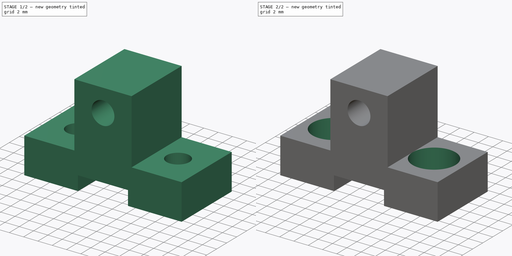
[diagram: build sequence overview — one tinted view per stage of 2, left to right]
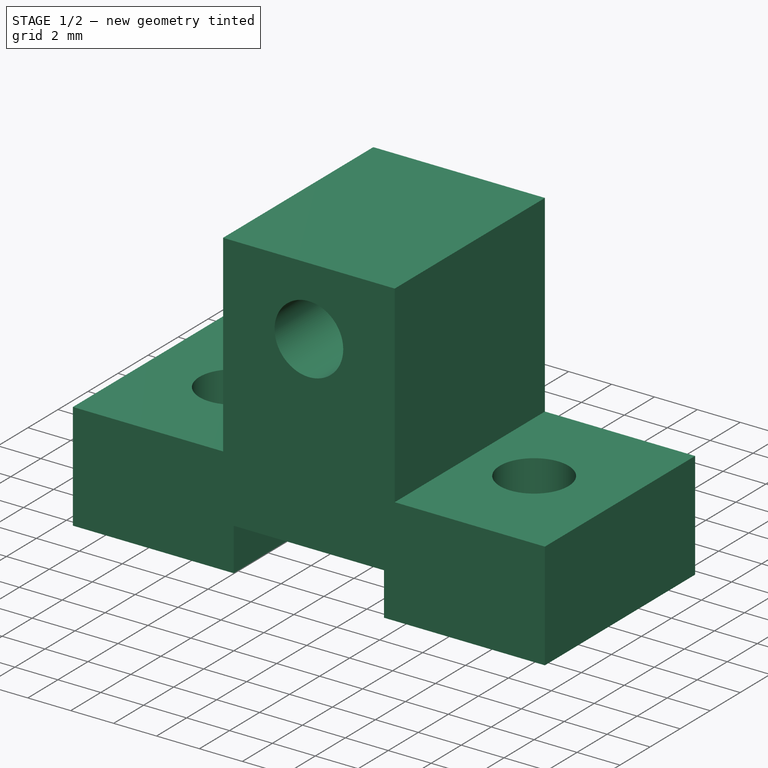
[diagram: stage 1 of 2 — iso view after this stage's code; geometry added in this stage tinted green]
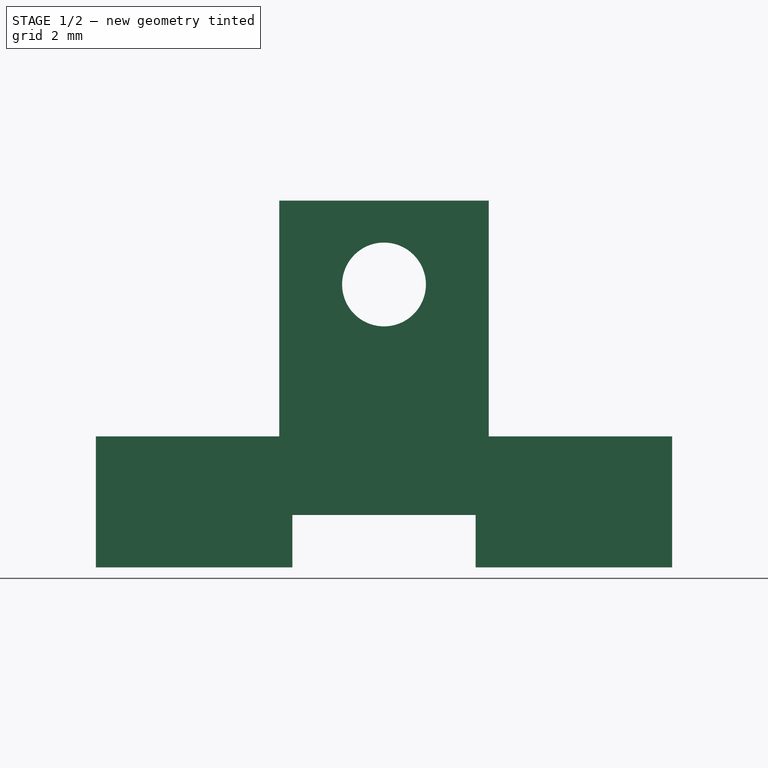
[diagram: stage 1 of 2 — front view after this stage's code; geometry added in this stage tinted green]
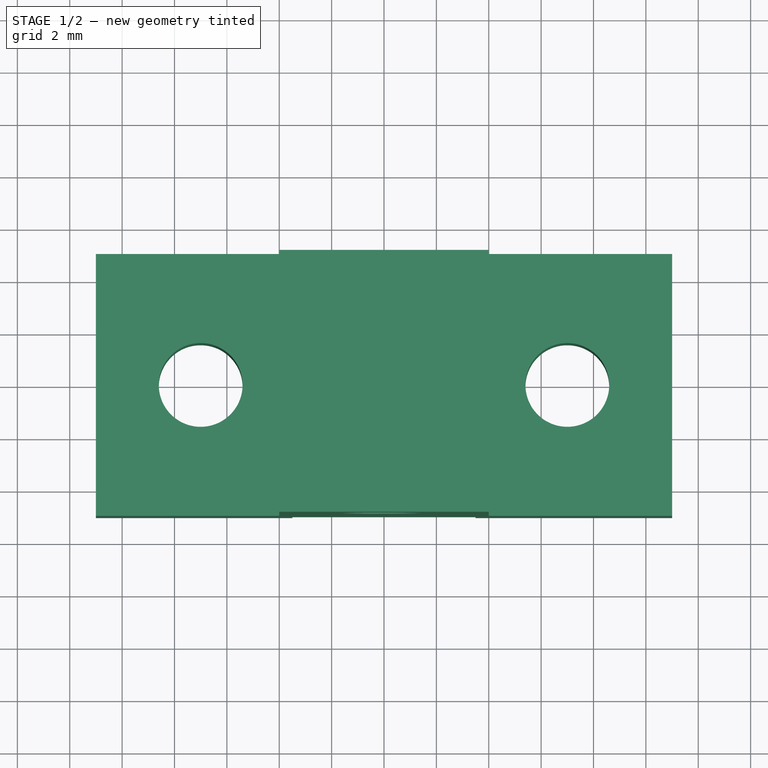
[diagram: stage 1 of 2 — top view after this stage's code; geometry added in this stage tinted green]
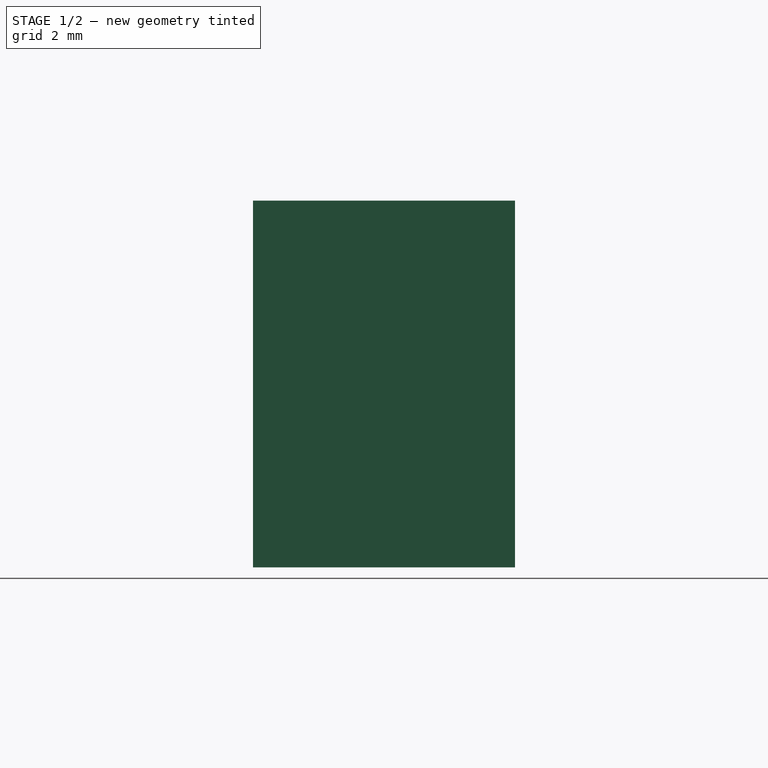
[diagram: stage 1 of 2 — right view after this stage's code; geometry added in this stage tinted green]
FCSTD DOCUMENT  (FreeCAD 0.18R14090 (Git))
Label: BedBeltClamp1_Alt2
License: All rights reserved
LicenseURL: http://en.wikipedia.org/wiki/All_rights_reserved
objects: Sketcher::SketchObject×3, PartDesign::Pocket×2, PartDesign::Pad×1, PartDesign::Plane×1, PartDesign::Body×1, App::Part×1
note: 11 computed .brp shape members not serialized (recipe doc carries the construction recipe); baked Part::Feature solids carry a one-line shape summary decoded from their .brp

FEATURE [Sketcher::SketchObject] Sketch  label="C_BaseSketch"
  MapMode = 5
  Placement = pos=(0,0,0) rot=(1,0,0;1.5708rad)
  Support = -> [XZ_Plane001]
  sketch-geometry (14):
    g0: LineSegment StartX=11 StartY=5 StartZ=0 EndX=11 EndY=0 EndZ=0
    g1: LineSegment StartX=-11 StartY=0 StartZ=0 EndX=-11 EndY=5 EndZ=0
    g2: LineSegment StartX=-11 StartY=5 StartZ=0 EndX=-4 EndY=5 EndZ=0
    g3: LineSegment StartX=11 StartY=5 StartZ=0 EndX=4 EndY=5 EndZ=0
    g4: LineSegment StartX=-4 StartY=5 StartZ=0 EndX=-4 EndY=14 EndZ=0
    g5: LineSegment StartX=-4 StartY=14 StartZ=0 EndX=4 EndY=14 EndZ=0
    g6: LineSegment StartX=4 StartY=14 StartZ=0 EndX=4 EndY=5 EndZ=0
    g7: LineSegment [constr] StartX=-4 StartY=5 StartZ=0 EndX=4 EndY=5 EndZ=0
    g8: Circle CenterX=0 CenterY=10.8 CenterZ=0 NormalX=0 NormalY=0 NormalZ=1 AngleXU=0 Radius=1.6
    g9: LineSegment StartX=-3.5 StartY=0 StartZ=0 EndX=-3.5 EndY=2 EndZ=0
    g10: LineSegment StartX=-3.5 StartY=2 StartZ=0 EndX=3.5 EndY=2 EndZ=0
    g11: LineSegment StartX=3.5 StartY=2 StartZ=0 EndX=3.5 EndY=0 EndZ=0
    g12: LineSegment StartX=3.5 StartY=0 StartZ=0 EndX=11 EndY=0 EndZ=0
    g13: LineSegment StartX=-3.5 StartY=0 StartZ=0 EndX=-11 EndY=0 EndZ=0
  constraints (39):
    c: Vertical(g0)
    c: Vertical(g1)
    c: PointOnObject(g0,g-1)
    c: Coincident(g2,g1)
    c: Horizontal(g2)
    c: Coincident(g3,g0)
    c: Horizontal(g3)
    c: Coincident(g4,g2)
    c: Vertical(g4)
    c: Coincident(g5,g4)
    c: Coincident(g6,g5)
    c: Coincident(g6,g3)
    c: Vertical(g6)
    c: Symmetric(g1,g0,g-2)
    c: Symmetric(g4,g5,g-2)
    c: Distance(g1) = 5
    c: Coincident(g7,g2)
    c: Coincident(g7,g3)
    c: Horizontal(g7)
    c: Distance(g5) = 8
    c: Distance(g6) = 9
    c: PointOnObject(g8,g-2)
    c: Distance(g8,g5) = 3.2
    c: Radius(g8) = 1.6
    c: PointOnObject(g9,g-1)
    c: Vertical(g9)
    c: Coincident(g10,g9)
    c: Horizontal(g10)
    c: Coincident(g11,g10)
    c: Vertical(g11)
    c: PointOnObject(g11,g-1)
    c: Coincident(g12,g11)
    c: Coincident(g12,g0)
    c: Coincident(g13,g9)
    c: Coincident(g13,g1)
    c: Distance(g10) = 7
    c: Distance(g9) = 2
    c: Distance(g1,g0) = 22
    c: Equal(g12,g13)
FEATURE [PartDesign::Pad] Pad  label="C_BasePad"
  Length = 10
  Length2 = 100
  Midplane = true
  Placement = pos=(0,0,0) rot=(1,0,0;1.5708rad)
  Profile = -> Sketch
  Type = 0
FEATURE [PartDesign::Plane] DatumPlane  label="C_HolesPlane"
  AttachmentOffset = pos=(0,0,5) rot=(0,0,1;0rad)
  MapMode = 5
  Placement = pos=(0,0,5) rot=(0,0,1;0rad)
  Support = -> [XY_Plane001]
FEATURE [Sketcher::SketchObject] Sketch001  label="C_HolesSketch"
  MapMode = 5
  Placement = pos=(0,0,5) rot=(0,0,1;0rad)
  Support = -> [DatumPlane]
  sketch-geometry (2):
    g0: Circle CenterX=-7 CenterY=0 CenterZ=0 NormalX=0 NormalY=0 NormalZ=1 AngleXU=0 Radius=1.6
    g1: Circle CenterX=7 CenterY=0 CenterZ=0 NormalX=0 NormalY=0 NormalZ=1 AngleXU=0 Radius=1.6
  constraints (5):
    c: PointOnObject(g0,g-1)
    c: Symmetric(g1,g0,g-2)
    c: Distance(g1,g0) = 14
    c: Equal(g0,g1)
    c: Radius(g0) = 1.6
FEATURE [PartDesign::Pocket] Pocket  label="C_HolesPocket"
  BaseFeature = -> Pad
  Length = 5
  Length2 = 100
  Placement = pos=(0,0,0) rot=(1,0,0;1.5708rad)
  Profile = -> Sketch001
  Type = 1
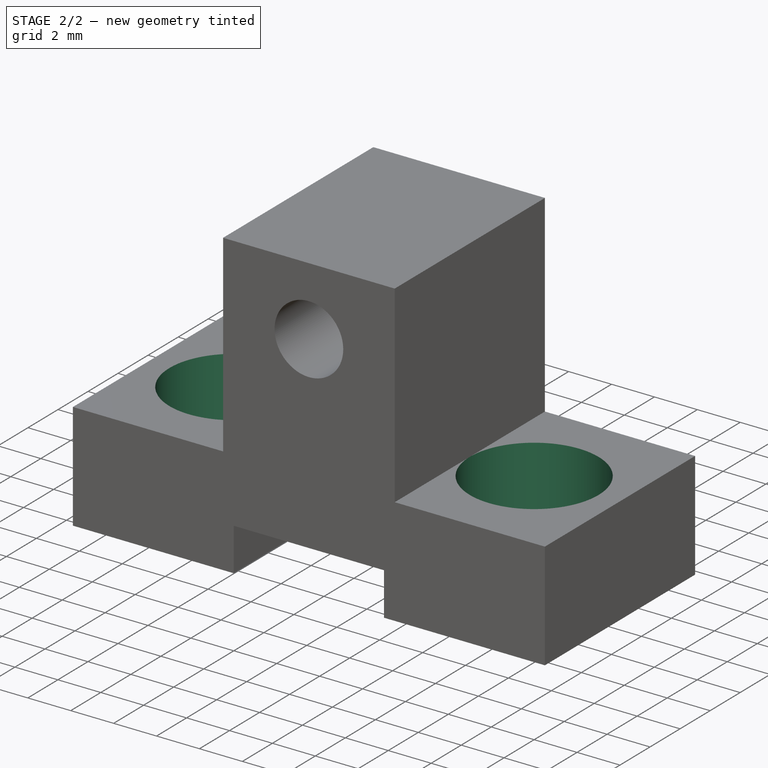
[diagram: stage 2 of 2 — iso view after this stage's code; geometry added in this stage tinted green]
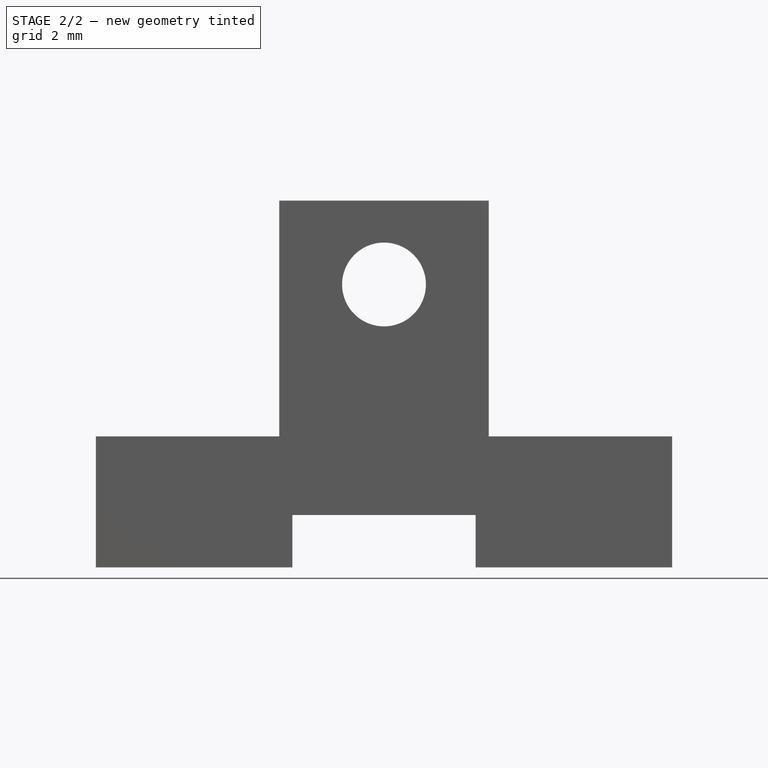
[diagram: stage 2 of 2 — front view after this stage's code; geometry added in this stage tinted green]
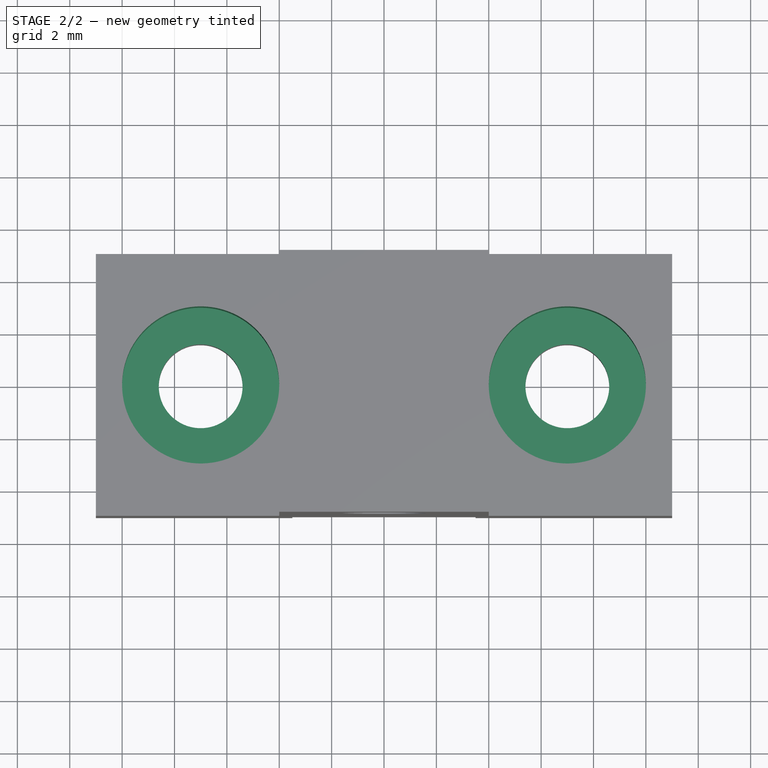
[diagram: stage 2 of 2 — top view after this stage's code; geometry added in this stage tinted green]
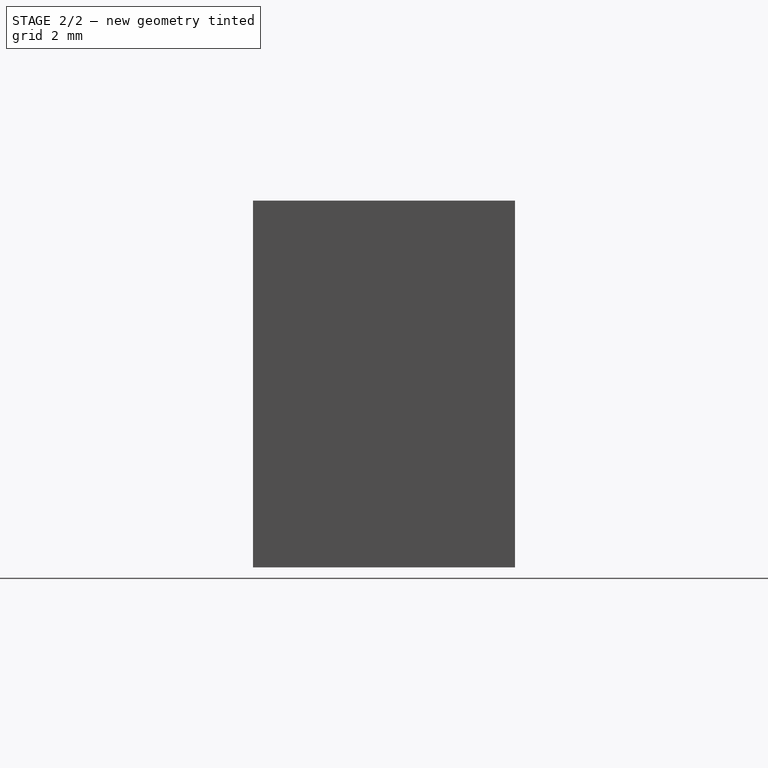
[diagram: stage 2 of 2 — right view after this stage's code; geometry added in this stage tinted green]
FEATURE [Sketcher::SketchObject] Sketch002  label="C_ScrewNotchSketch"
  ExternalGeometry = -> [Sketch001]
  MapMode = 5
  Placement = pos=(0,0,5) rot=(0,0,1;0rad)
  Support = -> [DatumPlane]
  sketch-geometry (2):
    g0: Circle CenterX=-7 CenterY=0 CenterZ=0 NormalX=0 NormalY=0 NormalZ=1 AngleXU=0 Radius=3
    g1: Circle CenterX=7 CenterY=0 CenterZ=0 NormalX=0 NormalY=0 NormalZ=1 AngleXU=0 Radius=3
  constraints (4):
    c: Coincident(g0,g-3)
    c: Coincident(g1,g-4)
    c: Equal(g1,g0)
    c: Radius(g0) = 3
FEATURE [PartDesign::Pocket] Pocket001  label="C_ScrewNotchPocket"
  BaseFeature = -> Pocket
  Length = 3
  Length2 = 100
  Placement = pos=(0,0,0) rot=(1,0,0;1.5708rad)
  Profile = -> Sketch002
  Type = 0
FEATURE [PartDesign::Body] Body  label="ClampBody"
  Group = -> [Sketch,Pad,Sketch001,Pocket,DatumPlane,Sketch002,Pocket001]
  Origin = -> Origin001
  Tip = -> Pocket001
FEATURE [App::Part] Part  label="ClampPart"
  Group = -> [Body]
  License = CC BY 3.0
  LicenseURL = http://creativecommons.org/licenses/by/3.0/
  Origin = -> Origin
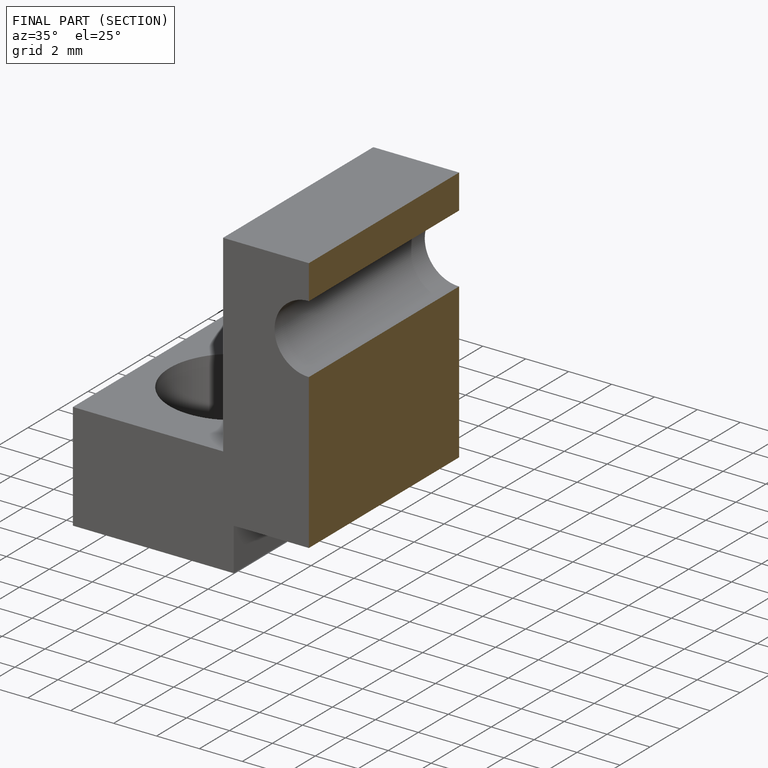
[diagram: finished part — half-section view (interior)]
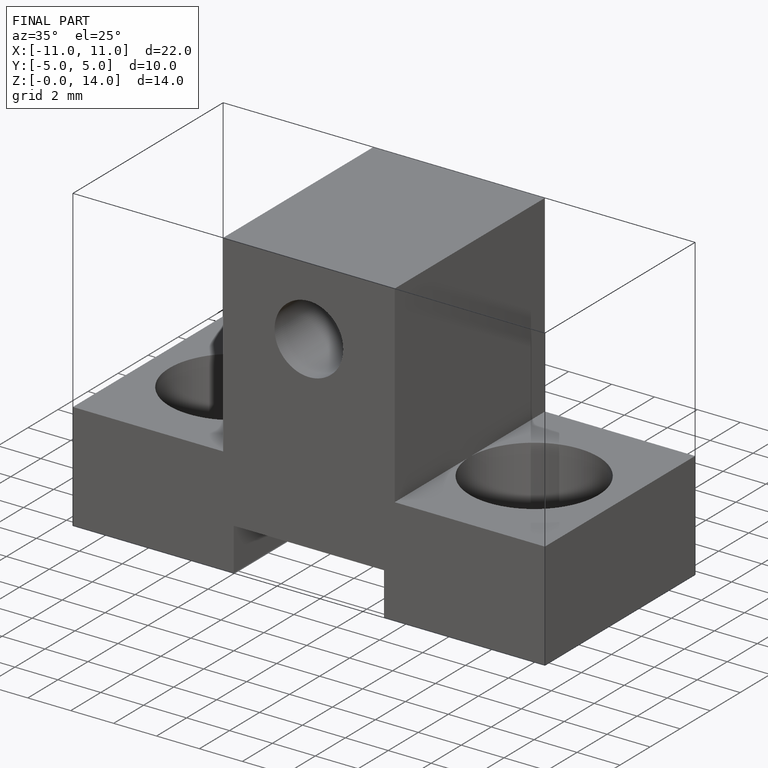
[diagram: finished part — iso view with bounding-box wireframe]
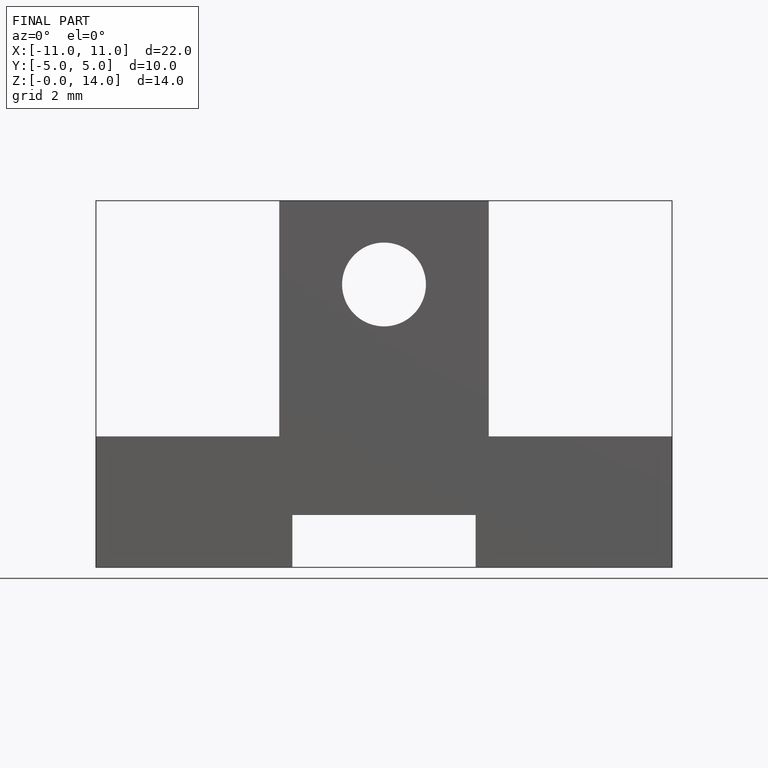
[diagram: finished part — front view with bounding-box wireframe]
